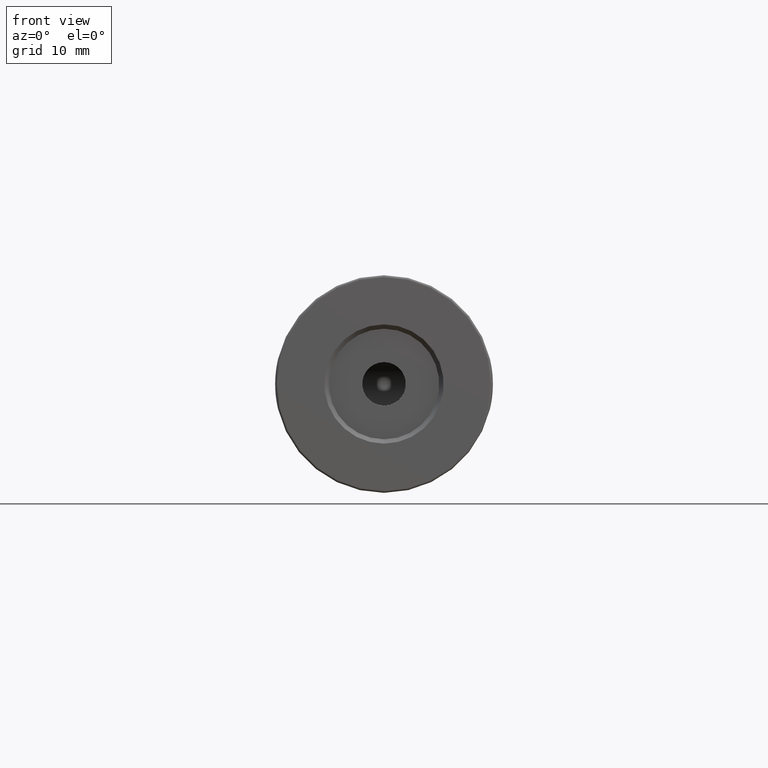
[diagram: clean part render]
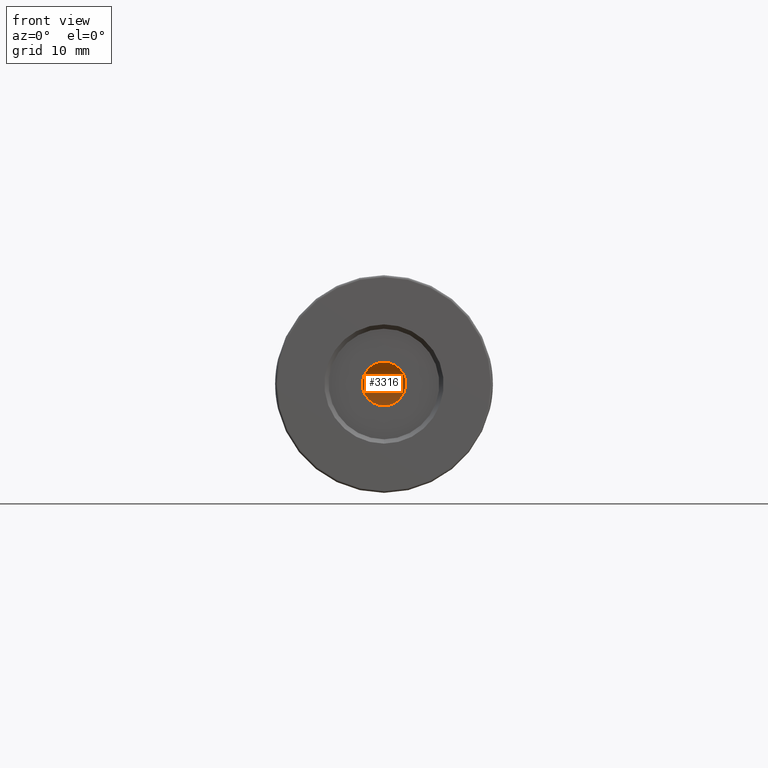
[diagram: same view with one face highlighted and labeled with its STEP entity id]
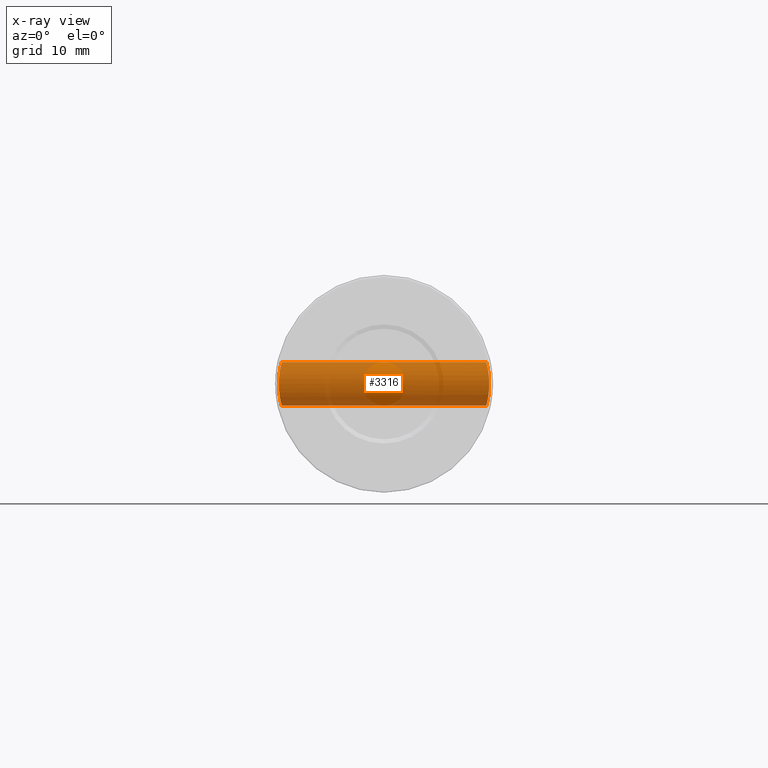
[diagram: x-ray of the same camera — body ghosted, the highlighted face saturated]
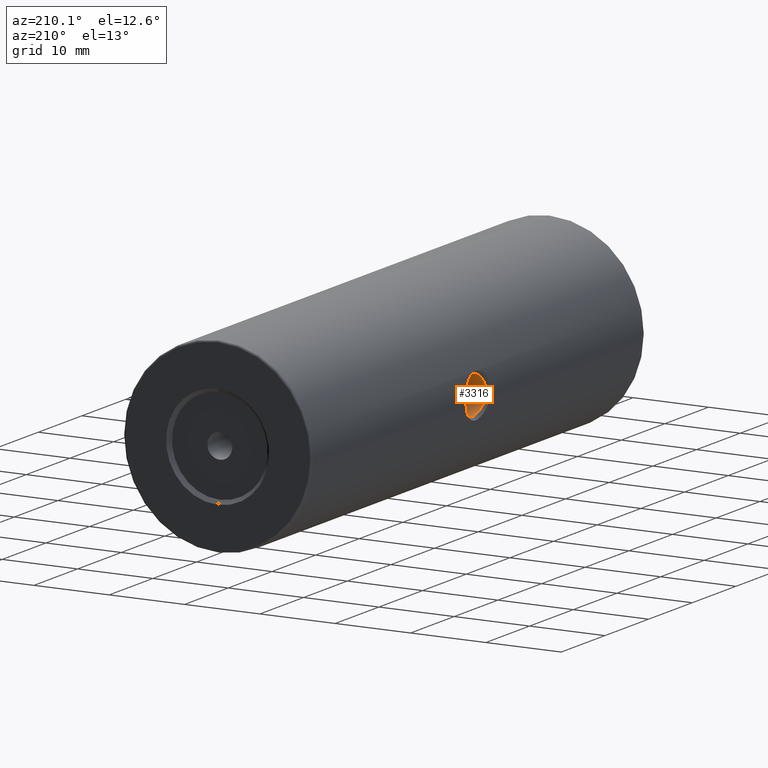
[diagram: same view with one face highlighted and labeled with its STEP entity id]
A machine part, front view. The second image highlights one B-rep face of the part: STEP entity #3316.
The next image is the same camera in x-ray: the body ghosted, the highlighted face saturated — about 84% of this face is hidden behind the body in this view.
A second angle (auxiliary view) of the same face is appended — the face is thin or edge-on in the first view.
In plain terms, the highlighted cylindrical surface (edge-blend (fillet) strip) has radius 2.5 mm, axis along (1, -0, -0).
Its self-contained STEP definition (entity closure, byte-faithful):
#16 = ORIENTED_EDGE ( 'NONE', *, *, #1882, .T. ) ;
#35 = CARTESIAN_POINT ( 'NONE',  ( -10.75667521398800730, 1.235421006823688383, 52.49604762626783838 ) ) ;
#46 = CARTESIAN_POINT ( 'NONE',  ( -10.75775311712867754, 1.398252184769388506, 47.50000000000000000 ) ) ;
#67 = VECTOR ( 'NONE', #483, 1000.000000000000000 ) ;
#71 = CARTESIAN_POINT ( 'NONE',  ( -10.59768553197811869, -0.3321902542045349072, 51.80448705928743891 ) ) ;
#77 = CARTESIAN_POINT ( 'NONE',  ( -34.33611078084103951, 0.1503272233542552461, 47.83335261609457234 ) ) ;
#86 = CARTESIAN_POINT ( 'NONE',  ( -10.63294623926913474, -0.1287006706456949867, 51.97970505892235593 ) ) ;
#92 = CARTESIAN_POINT ( 'NONE',  ( -34.28890165778433641, 0.5753963108306161534, 47.63868203712559790 ) ) ;
#94 = CARTESIAN_POINT ( 'NONE',  ( -34.25265054498069617, 1.398252184769378959, 47.49999999999539568 ) ) ;
#95 = CARTESIAN_POINT ( 'NONE',  ( -34.53800786392629618, -0.9182488754525560681, 50.94032211410492295 ) ) ;
#101 = CARTESIAN_POINT ( 'NONE',  ( -10.49436252009430959, -0.8263483254940376943, 51.14147247842084454 ) ) ;
#107 = B_SPLINE_CURVE_WITH_KNOTS ( 'NONE', 3,
 ( #3328, #3033, #131, #922, #2247, #1684, #3068, #2281, #112, #2001, #612, #401, #871, #95, #3345, #940, #1152, #3015, #2753, #1484, #2230, #886, #368, #3085, #682, #1754, #2821, #2560, #164, #2214, #3278, #2884, #956, #2084, #462, #2295, #1267, #3128, #2361, #2590, #742, #1235, #1797, #710, #2574, #1769, #1547, #1019, #3359, #2866, #3098, #696, #1530, #224, #2063, #2837, #2606, #2623, #1817, #3146, #180, #2049, #2034, #445, #480, #3425, #2310, #194, #1286, #430, #3112, #1515, #1004, #2102, #3372, #1498 ),
 .UNSPECIFIED., .F., .F.,
 ( 4, 2, 2, 2, 2, 1, 2, 2, 1, 2, 2, 2, 1, 2, 2, 2, 1, 1, 2, 2, 2, 2, 2, 2, 2, 2, 2, 1, 2, 2, 2, 1, 2, 2, 2, 2, 2, 1, 2, 2, 2, 4 ),
 ( 0.0000000000000000000, 0.01563223350079642054, 0.03126446700159284109, 0.03908058375199108953, 0.04689670050238933796, 0.05471281725278757946, 0.05862087562798731777, 0.06252893400318706996, 0.07034505075358657433, 0.07425310912878631264, 0.07816116750398605095, 0.08597728425438555533, 0.08988534262958522425, 0.09183937181718498932, 0.09379340100478475439, 0.1016095177551808171, 0.1055175761303784043, 0.1074716053179772118, 0.1084486199117765948, 0.1094256345055759777, 0.1172417512559694591, 0.1211498096311661304, 0.1231038388187643967, 0.1250578680063626491, 0.1328739847567578791, 0.1348280139443564229, 0.1358050285381557087, 0.1367820431319549668, 0.1387360723195534828, 0.1406901015071520267, 0.1485062182575438983, 0.1524142766327393761, 0.1543683058203366987, 0.1563223350079340213, 0.1641384517583213409, 0.1680465101335150702, 0.1719545685087088271, 0.1797706852590958415, 0.1836787436342895985, 0.1875868020094833832, 0.2188512690110356040, 0.2501157360125878526 ),
 .UNSPECIFIED. ) ;
#112 = CARTESIAN_POINT ( 'NONE',  ( -34.55953902162514879, -1.005153659614235639, 50.68936837205296797 ) ) ;
#120 = CARTESIAN_POINT ( 'NONE',  ( -10.45853397091776671, -0.9753457991710134944, 50.80247828405234145 ) ) ;
#128 = CARTESIAN_POINT ( 'NONE',  ( -34.25829749248940459, 1.071978150816064623, 47.52103727241345155 ) ) ;
#131 = CARTESIAN_POINT ( 'NONE',  ( -34.58332565315851781, -1.097829955506915534, 50.16206928806295195 ) ) ;
#138 = CARTESIAN_POINT ( 'NONE',  ( -10.54466226497597958, -0.6005430654720785855, 48.49825746431432094 ) ) ;
#146 = CARTESIAN_POINT ( 'NONE',  ( -34.36546234113603759, -0.05330031764544096440, 47.96415985773879243 ) ) ;
#155 = CARTESIAN_POINT ( 'NONE',  ( -10.43156405840181478, -1.080594982313358265, 49.67285477186080556 ) ) ;
#164 = CARTESIAN_POINT ( 'NONE',  ( -34.46581749594777477, -0.6009040175966636754, 51.50126430585235227 ) ) ;
#170 = CARTESIAN_POINT ( 'NONE',  ( -10.47039545447469244, -0.9264528070140645166, 49.08012378239175888 ) ) ;
#180 = CARTESIAN_POINT ( 'NONE',  ( -34.35081851357114857, 0.04444782514057967621, 52.10216400113468893 ) ) ;
#185 = CARTESIAN_POINT ( 'NONE',  ( -10.63454691683143238, -0.1190031697157455381, 48.01264145024488528 ) ) ;
#194 = CARTESIAN_POINT ( 'NONE',  ( -34.31595423362264086, 0.3112339593188586107, 52.25194986128754238 ) ) ;
#199 = CARTESIAN_POINT ( 'NONE',  ( -10.72619458734589060, 0.6309908819573776251, 47.62028681999434809 ) ) ;
#214 = CARTESIAN_POINT ( 'NONE',  ( -10.74267190343699596, 0.8671768546495363106, 47.55670384601889111 ) ) ;
#219 = CARTESIAN_POINT ( 'NONE',  ( -34.58016539617008789, -1.085858857453090298, 49.67297012239200171 ) ) ;
#224 = CARTESIAN_POINT ( 'NONE',  ( -34.38153388471020122, -0.1538147826457436362, 51.96040254878963793 ) ) ;
#231 = CARTESIAN_POINT ( 'NONE',  ( -10.67858783946020829, 0.1833180172065385083, 47.81497774244996180 ) ) ;
#236 = CARTESIAN_POINT ( 'NONE',  ( -34.43271107056651914, -0.4380337513509017788, 48.30302201632877512 ) ) ;
#244 = CARTESIAN_POINT ( 'NONE',  ( -35.00520183104453764, 1.398252184769388506, 47.50000000000000000 ) ) ;
#247 = CARTESIAN_POINT ( 'NONE',  ( -10.73524935634133470, 0.7501397675427314837, 47.58512630802447063 ) ) ;
#254 = CARTESIAN_POINT ( 'NONE',  ( -34.52237776068144370, -0.8532812733182263409, 48.91209882788901808 ) ) ;
#271 = CARTESIAN_POINT ( 'NONE',  ( -10.56685546660041197, -0.4927281287819081923, 51.63538786506156697 ) ) ;
#288 = CARTESIAN_POINT ( 'NONE',  ( -10.67397712752151939, 0.1479697807018201250, 52.16528279556865755 ) ) ;
#306 = CARTESIAN_POINT ( 'NONE',  ( -10.66309147314436068, 0.06921372924087453027, 52.11764764604126299 ) ) ;
#323 = VERTEX_POINT ( 'NONE', #94 ) ;
#325 = CARTESIAN_POINT ( 'NONE',  ( -10.61534918408378658, -0.2334643236673985822, 51.89451868795770650 ) ) ;
#331 = CARTESIAN_POINT ( 'NONE',  ( -34.36065912380771437, -0.02189760901745156640, 47.94221740973863888 ) ) ;
#347 = CARTESIAN_POINT ( 'NONE',  ( -34.27515761366211677, 0.7500930229032413132, 47.58513699397326491 ) ) ;
#357 = CARTESIAN_POINT ( 'NONE',  ( -10.57485337616752474, -0.4524102370142230600, 48.31908865571287492 ) ) ;
#368 = CARTESIAN_POINT ( 'NONE',  ( -34.49189742568898254, -0.7208368889190491791, 51.32674070400197763 ) ) ;
#374 = CARTESIAN_POINT ( 'NONE',  ( -10.49456390203905798, -0.8254235332581697504, 48.85732724731891352 ) ) ;
#383 = CARTESIAN_POINT ( 'NONE',  ( -35.00520183104453764, 1.398252184769388728, 52.50000000000000711 ) ) ;
#390 = CARTESIAN_POINT ( 'NONE',  ( -10.56183111278579112, -0.5176069660207067713, 51.60611082408080819 ) ) ;
#398 = CARTESIAN_POINT ( 'NONE',  ( -34.35511391788237745, 0.01548280112290609245, 47.91720626423345664 ) ) ;
#401 = CARTESIAN_POINT ( 'NONE',  ( -34.54368112407052394, -0.9414460339125865218, 50.88104559081531875 ) ) ;
#407 = CARTESIAN_POINT ( 'NONE',  ( -10.52981318182304982, -0.6696149487913550802, 51.40499581730534118 ) ) ;
#414 = CARTESIAN_POINT ( 'NONE',  ( -34.56966959213394119, -1.045008463534081500, 49.46876354828056321 ) ) ;
#422 = CARTESIAN_POINT ( 'NONE',  ( -10.50134449062665176, -0.7962799575883163783, 51.19769795377343513 ) ) ;
#430 = CARTESIAN_POINT ( 'NONE',  ( -34.30585923076485955, 0.4026942708935128401, 52.29330818213769305 ) ) ;
#445 = CARTESIAN_POINT ( 'NONE',  ( -34.33622545325887643, 0.1498362925617893748, 52.16606716925286236 ) ) ;
#451 = CARTESIAN_POINT ( 'NONE',  ( -10.62899526951344953, -0.1530495287548256089, 48.03899991138553816 ) ) ;
#462 = CARTESIAN_POINT ( 'NONE',  ( -34.44811386676256859, -0.5154113349209866746, 51.60895465352095357 ) ) ;
#468 = CARTESIAN_POINT ( 'NONE',  ( -10.67407581830363661, 0.1490699397468195908, 47.83437514416252867 ) ) ;
#474 = CARTESIAN_POINT ( 'NONE',  ( -34.48044836706667837, -0.6689643208926463469, 48.59404682428305478 ) ) ;
#480 = CARTESIAN_POINT ( 'NONE',  ( -34.33170421932185690, 0.1841765980687189996, 52.18549987220520592 ) ) ;
#483 = DIRECTION ( 'NONE',  ( 1.000000000000000000, -0.0000000000000000000, -0.0000000000000000000 ) ) ;
#486 = CARTESIAN_POINT ( 'NONE',  ( -10.75775311712867932, 1.236031257711929232, 47.50000000000000711 ) ) ;
#492 = CARTESIAN_POINT ( 'NONE',  ( -34.44989863875254343, -0.5241191200916088810, 48.40171871345798849 ) ) ;
#532 = CARTESIAN_POINT ( 'NONE',  ( -34.54002772576768621, -0.9265728093899719964, 49.07969790767009499 ) ) ;
#568 = CARTESIAN_POINT ( 'NONE',  ( -10.75344100360282873, 1.112614096201507197, 52.48396916620082209 ) ) ;
#602 = CARTESIAN_POINT ( 'NONE',  ( -10.63697505380315356, -0.1036455915513017079, 51.99867907383298871 ) ) ;
#608 = CARTESIAN_POINT ( 'NONE',  ( -34.38468148765102228, -0.1723687771910663857, 48.05495386559690019 ) ) ;
#612 = CARTESIAN_POINT ( 'NONE',  ( -34.54897798571440148, -0.9629645925019317820, 50.82316125446094190 ) ) ;
#619 = CARTESIAN_POINT ( 'NONE',  ( -10.72622720231814242, 0.6314631382452489117, 52.37983731699282686 ) ) ;
#626 = CARTESIAN_POINT ( 'NONE',  ( -34.30563352354653262, 0.4043161049987979982, 47.70574000956042937 ) ) ;
#636 = CARTESIAN_POINT ( 'NONE',  ( -10.54703919514980370, -0.5893708080303482477, 51.51690487171907762 ) ) ;
#654 = CARTESIAN_POINT ( 'NONE',  ( -10.43025254437212723, -1.085644778690259438, 49.71374546766625713 ) ) ;
#662 = CARTESIAN_POINT ( 'NONE',  ( -34.34333947315310098, 0.09759829469699134175, 47.86488434572822825 ) ) ;
#671 = CARTESIAN_POINT ( 'NONE',  ( -10.48775368432496791, -0.8544294257559617023, 51.08551524635965535 ) ) ;
#680 = CARTESIAN_POINT ( 'NONE',  ( -34.50003614694451670, -0.7569234432846284610, 48.73286471892436822 ) ) ;
#682 = CARTESIAN_POINT ( 'NONE',  ( -34.48550909626910510, -0.6920244124226463400, 51.37144371162716538 ) ) ;
#688 = CARTESIAN_POINT ( 'NONE',  ( -10.52509590031765896, -0.6911116932019383263, 48.62716596998337337 ) ) ;
#696 = CARTESIAN_POINT ( 'NONE',  ( -34.39003097984237911, -0.2040613253599488086, 51.91903397185393487 ) ) ;
#701 = CARTESIAN_POINT ( 'NONE',  ( -10.50337425848758599, -0.7875330552918761162, 48.78598592210264684 ) ) ;
#710 = CARTESIAN_POINT ( 'NONE',  ( -34.40604090029047057, -0.2955402768680885917, 51.83903909638959817 ) ) ;
#732 = B_SPLINE_CURVE_WITH_KNOTS ( 'NONE', 3,
 ( #1664, #3306, #2524, #1445, #128, #1133, #1148, #2261, #1980, #347, #3325, #1947, #92, #1412, #2803, #2227, #626, #2470, #2732, #1697, #2542, #2504, #77, #662, #1998, #2210, #1734, #398, #331, #146, #2195, #2995, #3011, #608, #2749, #3291, #883, #2766, #2356, #3399, #1014, #2016, #2134, #2913, #236, #3158, #1031, #3455, #1217, #492, #2372, #1601, #3438, #1542, #3083, #1830, #1298, #474, #2097, #1200, #2618, #680, #3419, #3343, #1482, #1580, #254, #2819, #1752, #938, #532, #2340, #1810, #2895, #2279, #737, #2879, #414, #219, #1562, #2673 ),
 .UNSPECIFIED., .F., .F.,
 ( 4, 2, 2, 2, 2, 2, 1, 2, 2, 1, 2, 2, 2, 1, 2, 2, 2, 1, 1, 1, 2, 2, 2, 2, 2, 2, 2, 1, 2, 2, 2, 1, 2, 2, 2, 2, 2, 1, 2, 2, 2, 2, 2, 2, 4 ),
 ( 0.7500228881835949712, 0.7656464576721251358, 0.7734582424163900516, 0.7812700271606550784, 0.7890818119049199941, 0.7968935966491850209, 0.8047053813934499367, 0.8086112737655821725, 0.8125171661377144083, 0.8203289508819793241, 0.8242348432541117820, 0.8281407356262442399, 0.8359525203705090446, 0.8398584127426411694, 0.8418113589287072873, 0.8437643051147732942, 0.8515760898590373218, 0.8554819822311694466, 0.8574349284172358976, 0.8584114015102690676, 0.8588996380567855971, 0.8593878746033020155, 0.8671996593475631565, 0.8711055517196942821, 0.8750114440918252967, 0.8828232288360867708, 0.8867291212082168972, 0.8886820673942824600, 0.8896585404873151859, 0.8906350135803480228, 0.8984467983246064993, 0.9023526906967364036, 0.9043056368828014113, 0.9062585830688664190, 0.9140703678131247845, 0.9179762601852545778, 0.9218821525573843711, 0.9296939373016450681, 0.9335998296737753055, 0.9375057220459055429, 0.9453175067901672390, 0.9531292915344288241, 0.9609410762786904092, 0.9687528610229521053, 1.000000000000000000 ),
 .UNSPECIFIED. ) ;
#737 = CARTESIAN_POINT ( 'NONE',  ( -34.56241719056820472, -1.016540575825765957, 49.35158547355308656 ) ) ;
#742 = CARTESIAN_POINT ( 'NONE',  ( -34.42314861016581062, -0.3880299836940076519, 51.74909948006111904 ) ) ;
#749 = CARTESIAN_POINT ( 'NONE',  ( -10.58721188069590013, -0.3882578060680674237, 48.25113323422816336 ) ) ;
#765 = CARTESIAN_POINT ( 'NONE',  ( -10.73240326151517543, 0.7104556606544493169, 47.59611550458409823 ) ) ;
#801 = CARTESIAN_POINT ( 'NONE',  ( -34.58436371778454799, -1.101747815230615046, 50.00000000000000000 ) ) ;
#809 = CARTESIAN_POINT ( 'NONE',  ( -10.68486198365353523, 0.2326005164728883468, 52.21170044161963375 ) ) ;
#826 = CARTESIAN_POINT ( 'NONE',  ( -10.65663854590160575, 0.02464572239993973249, 52.08885589112610148 ) ) ;
#844 = CARTESIAN_POINT ( 'NONE',  ( -10.65924026932433755, 0.04251003612912508667, 52.10049443554501636 ) ) ;
#861 = CARTESIAN_POINT ( 'NONE',  ( -10.70449112277428227, 0.4016970245411170537, 52.29312540136073295 ) ) ;
#871 = CARTESIAN_POINT ( 'NONE',  ( -34.54002586173841394, -0.9265255133307832569, 50.91969437424333478 ) ) ;
#877 = CARTESIAN_POINT ( 'NONE',  ( -10.74885913942064342, 0.9897023148770923706, 52.46673922109147270 ) ) ;
#883 = CARTESIAN_POINT ( 'NONE',  ( -34.38704001704110169, -0.1864058910965706306, 48.06638648103955092 ) ) ;
#886 = CARTESIAN_POINT ( 'NONE',  ( -34.49555993424321798, -0.7371358814664346060, 51.30020623645595634 ) ) ;
#894 = CARTESIAN_POINT ( 'NONE',  ( -10.44688409141886432, -1.021078929278354419, 50.65151652737000632 ) ) ;
#911 = CARTESIAN_POINT ( 'NONE',  ( -10.55563654013722541, -0.5478977700872589285, 48.43075464459153068 ) ) ;
#912 = CYLINDRICAL_SURFACE ( 'NONE', #2745, 2.500000000000002220 ) ;
#922 = CARTESIAN_POINT ( 'NONE',  ( -34.57917339465430473, -1.081894588688653736, 50.32490689011657281 ) ) ;
#930 = CARTESIAN_POINT ( 'NONE',  ( -10.51011081742807640, -0.7580530290960880713, 51.26521392757351947 ) ) ;
#933 = EDGE_CURVE ( 'NONE', #323, #2616, #3205, .T. ) ;
#935 = VERTEX_POINT ( 'NONE', #801 ) ;
#938 = CARTESIAN_POINT ( 'NONE',  ( -34.53415704703239442, -0.9023810259696539715, 49.02146608219324264 ) ) ;
#940 = CARTESIAN_POINT ( 'NONE',  ( -34.52671466100697018, -0.8715178150477008723, 51.04931399673699843 ) ) ;
#946 = CARTESIAN_POINT ( 'NONE',  ( -10.47238800386750945, -0.9182809379822212126, 49.05975502746936456 ) ) ;
#956 = CARTESIAN_POINT ( 'NONE',  ( -34.45330299445129896, -0.5407750536104598549, 51.57803819709852178 ) ) ;
#961 = CARTESIAN_POINT ( 'NONE',  ( -10.52659986134877812, -0.6842789163474509717, 48.61683424880514082 ) ) ;
#976 = CARTESIAN_POINT ( 'NONE',  ( -10.66457406164129651, 0.07945628636467474970, 47.87575189702688050 ) ) ;
#990 = CARTESIAN_POINT ( 'NONE',  ( -10.61375476853602606, -0.2424175753993940419, 48.11367224340907001 ) ) ;
#1004 = CARTESIAN_POINT ( 'NONE',  ( -34.27403437959152654, 0.7470135017632717478, 52.41939231723521431 ) ) ;
#1009 = CARTESIAN_POINT ( 'NONE',  ( -10.65192854982789683, -0.007112948201960019035, 47.93238411275946476 ) ) ;
#1014 = CARTESIAN_POINT ( 'NONE',  ( -34.40583974799373124, -0.2943204191261629687, 48.15994960568419714 ) ) ;
#1019 = CARTESIAN_POINT ( 'NONE',  ( -34.39821049578661416, -0.2513442735234109326, 51.87852623588366896 ) ) ;
#1026 = CARTESIAN_POINT ( 'NONE',  ( -10.68052348044138711, 0.1982792118213697330, 47.80671014586517487 ) ) ;
#1031 = CARTESIAN_POINT ( 'NONE',  ( -34.44330006849612857, -0.4914919949713063563, 48.36318211073473350 ) ) ;
#1069 = CARTESIAN_POINT ( 'NONE',  ( -10.62583528340232419, -0.1716875950641108539, 51.94559000062299248 ) ) ;
#1090 = CARTESIAN_POINT ( 'NONE',  ( -10.65514354456009372, 0.01449203190352067218, 52.08213575340119661 ) ) ;
#1108 = CARTESIAN_POINT ( 'NONE',  ( -10.66678853302218322, 0.09561727200063196985, 52.13390632472764707 ) ) ;
#1127 = CARTESIAN_POINT ( 'NONE',  ( -10.69192657274649605, 0.2906602530027208586, 52.24135659737299164 ) ) ;
#1133 = CARTESIAN_POINT ( 'NONE',  ( -34.26152439529791138, 0.9901480680584631155, 47.53318789124117671 ) ) ;
#1142 = CARTESIAN_POINT ( 'NONE',  ( -10.71009666006401950, 0.4561568447543077887, 52.31578128150257356 ) ) ;
#1148 = CARTESIAN_POINT ( 'NONE',  ( -34.26348267496896938, 0.9478053007262210450, 47.54058718526124494 ) ) ;
#1152 = CARTESIAN_POINT ( 'NONE',  ( -34.52032622242433746, -0.8445100356032293476, 51.10473890577434020 ) ) ;
#1158 = CARTESIAN_POINT ( 'NONE',  ( -10.51723568322991831, -0.7265641944379241934, 51.31788815387729130 ) ) ;
#1175 = CARTESIAN_POINT ( 'NONE',  ( -10.43661014202600334, -1.061059718646982120, 49.54899595833271064 ) ) ;
#1193 = CARTESIAN_POINT ( 'NONE',  ( -10.56225021271690956, -0.5156065727790737352, 48.39127750157884833 ) ) ;
#1200 = CARTESIAN_POINT ( 'NONE',  ( -34.48795404595411895, -0.7031998793499536493, 48.64510045658028758 ) ) ;
#1210 = CARTESIAN_POINT ( 'NONE',  ( -10.44294982557474327, -1.036351153594447183, 49.43045362237477747 ) ) ;
#1217 = CARTESIAN_POINT ( 'NONE',  ( -34.44837371987758701, -0.5166280661029161170, 48.39272163355637701 ) ) ;
#1225 = CARTESIAN_POINT ( 'NONE',  ( -10.47779617320455081, -0.8959676764292116014, 50.99345784358121847 ) ) ;
#1235 = CARTESIAN_POINT ( 'NONE',  ( -34.42163468957090799, -0.3800297843784509744, 51.75724919856500605 ) ) ;
#1240 = CARTESIAN_POINT ( 'NONE',  ( -10.61064650977544943, -0.2601381410403050820, 48.12922970413440993 ) ) ;
#1241 = FACE_OUTER_BOUND ( 'NONE', #2319, .T. ) ;
#1258 = CARTESIAN_POINT ( 'NONE',  ( -10.62159523112631199, -0.1968808583487399178, 48.07498591644807817 ) ) ;
#1267 = CARTESIAN_POINT ( 'NONE',  ( -34.43550956284021680, -0.4522026041796066709, 51.68113994092394137 ) ) ;
#1273 = CARTESIAN_POINT ( 'NONE',  ( -10.75344419893105830, 1.071524213025599748, 47.51584169795629009 ) ) ;
#1286 = CARTESIAN_POINT ( 'NONE',  ( -34.30982150685456133, 0.3662233020352880231, 52.27712853465570930 ) ) ;
#1292 = CARTESIAN_POINT ( 'NONE',  ( -10.64232181272081945, -0.06986180900785315950, 47.97637558937557145 ) ) ;
#1298 = CARTESIAN_POINT ( 'NONE',  ( -34.47813198005130886, -0.6583300113459676917, 48.57853663986320925 ) ) ;
#1309 = CARTESIAN_POINT ( 'NONE',  ( -10.61791199076805547, -0.2184314463097101200, 48.09305608991351733 ) ) ;
#1334 = CARTESIAN_POINT ( 'NONE',  ( -10.56932247538145297, -0.4803972759767117795, 51.64957173091195841 ) ) ;
#1387 = CARTESIAN_POINT ( 'NONE',  ( -10.60718500969503175, -0.2796514540814480920, 51.85339265523057151 ) ) ;
#1412 = CARTESIAN_POINT ( 'NONE',  ( -34.29428882788727151, 0.5177238711668654680, 47.66010762345736396 ) ) ;
#1421 = CARTESIAN_POINT ( 'NONE',  ( -10.53216740897183357, -0.6588951868629271402, 48.57891688851641732 ) ) ;
#1436 = CARTESIAN_POINT ( 'NONE',  ( -10.51501407883767492, -0.7363793037194833468, 48.69855127273331163 ) ) ;
#1437 = EDGE_CURVE ( 'NONE', #323, #935, #732, .T. ) ;
#1445 = CARTESIAN_POINT ( 'NONE',  ( -34.25695295455720668, 1.112906428229122779, 47.51599801852434268 ) ) ;
#1449 = EDGE_CURVE ( 'NONE', #3368, #2616, #1527, .T. ) ;
#1458 = CARTESIAN_POINT ( 'NONE',  ( -10.53211967788949543, -0.6590292880688546351, 51.42045086864089143 ) ) ;
#1468 = LINE ( 'NONE', #383, #1653 ) ;
#1474 = CARTESIAN_POINT ( 'NONE',  ( -10.52225190994312065, -0.7040929117081498045, 51.35352181783002834 ) ) ;
#1482 = CARTESIAN_POINT ( 'NONE',  ( -34.50873068778917485, -0.7948591728950414881, 48.79970146550761001 ) ) ;
#1484 = CARTESIAN_POINT ( 'NONE',  ( -34.50716656986350728, -0.7881284129451863185, 51.21293915893434701 ) ) ;
#1490 = CARTESIAN_POINT ( 'NONE',  ( -10.52885508855793439, -0.6739989469079826767, 51.39853227019023052 ) ) ;
#1498 = CARTESIAN_POINT ( 'NONE',  ( -34.25265052839080937, 1.398252184769062545, 52.50000002275201183 ) ) ;
#1509 = ORIENTED_EDGE ( 'NONE', *, *, #1437, .T. ) ;
#1515 = CARTESIAN_POINT ( 'NONE',  ( -34.28602672658882256, 0.5950355728030163327, 52.37347955788893472 ) ) ;
#1521 = CARTESIAN_POINT ( 'NONE',  ( -10.58870654708413639, -0.3803608511668468140, 48.24308501967145446 ) ) ;
#1527 = B_SPLINE_CURVE_WITH_KNOTS ( 'NONE', 3,
 ( #2971, #2726, #35, #568, #1637, #877, #2710, #2187, #1619, #3215, #3250, #619, #2480, #1924, #2951, #1142, #861, #2690, #1127, #2988, #809, #1890, #288, #1108, #306, #844, #826, #1090, #3022, #2168, #602, #86, #1673, #1069, #2221, #1657, #3231, #325, #1387, #1941, #71, #3284, #3266, #1691, #1334, #271, #3005, #390, #2793, #1990, #2008, #2254, #636, #3299, #3090, #1458, #407, #1490, #1474, #1158, #930, #2534, #3074, #422, #101, #671, #2237, #1225, #2551, #120, #894, #3057, #3351, #2566, #1708, #654, #155, #1973, #1175, #1727, #1210, #2271, #3104, #2827, #1745, #3039, #170, #946, #2775, #2287, #2812, #374, #2026, #701, #2302, #1436, #2515, #3364, #688, #961, #1421, #3318, #138, #2497, #1761, #911, #2040, #2759, #1193, #3335, #357, #2858, #1774, #2108, #749, #1521, #3153, #3412, #1803, #1240, #2631, #2842, #990, #2333, #1309, #2384, #1258, #451, #185, #1292, #1554, #2872, #1009, #2612, #2596, #976, #3379, #468, #231, #1026, #1823, #2090, #2127, #1574, #3393, #2580, #2890, #1536, #199, #765, #247, #2069, #214, #1273, #486, #2367 ),
 .UNSPECIFIED., .F., .F.,
 ( 4, 2, 2, 2, 2, 2, 1, 2, 2, 1, 2, 2, 2, 1, 2, 2, 2, 1, 1, 2, 2, 2, 2, 2, 2, 2, 1, 2, 2, 2, 1, 2, 2, 2, 2, 2, 1, 2, 2, 2, 2, 2, 2, 2, 2, 2, 1, 2, 2, 1, 2, 2, 2, 1, 2, 2, 2, 1, 1, 2, 2, 2, 2, 2, 2, 2, 2, 2, 1, 2, 2, 2, 1, 2, 2, 2, 2, 2, 1, 2, 2, 2, 2, 2, 2, 4 ),
 ( 0.5001617398552816729, 0.5157816854847975252, 0.5235916582995554514, 0.5314016311143133775, 0.5392116039290713037, 0.5470215767438291188, 0.5548315495585870449, 0.5587365359659660635, 0.5626415223733449711, 0.5704514951881034523, 0.5743564815954823599, 0.5782614680028612675, 0.5860714408176191936, 0.5899764272249977681, 0.5919289204286870554, 0.5938814136323764536, 0.6016913864471343798, 0.6055963728545132874, 0.6075488660582027967, 0.6085251126600474958, 0.6095013592618923060, 0.6173113320766486778, 0.6212163184840273633, 0.6251213048914059378, 0.6329312777061625317, 0.6368362641135407731, 0.6387887573172293942, 0.6397650039190742044, 0.6407412505209191256, 0.6485512233356810485, 0.6524562097430620655, 0.6544087029467525740, 0.6563611961504430825, 0.6641711689652061157, 0.6680761553725870217, 0.6719811417799679276, 0.6797911145947298506, 0.6836961010021107565, 0.6876010874094916625, 0.7188409786685332481, 0.7500808699275748337, 0.7657008155570955710, 0.7735107883718559396, 0.7813207611866164193, 0.7891307340013766769, 0.7969407068161371566, 0.8047506796308974142, 0.8086556660382776540, 0.8125606524456578938, 0.8203706252604194837, 0.8242756116677997236, 0.8281805980751799634, 0.8359905708899404431, 0.8398955572973212380, 0.8418480505010121906, 0.8438005437047031432, 0.8516105165194682858, 0.8555155029268508571, 0.8574679961305426978, 0.8584442427323886182, 0.8594204893342344276, 0.8672304621489971277, 0.8711354485563784777, 0.8730879417600692083, 0.8750404349637599388, 0.8828504077785239712, 0.8848029009822154789, 0.8857791475840612883, 0.8867553941859069866, 0.8887078873895983833, 0.8906603805932900020, 0.8984703534080551446, 0.9023753398154379379, 0.9043278330191292236, 0.9062803262228205092, 0.9140902990375849857, 0.9179952854449672239, 0.9219002718523494622, 0.9297102446671140497, 0.9336152310744965099, 0.9375202174818790812, 0.9453301902966441128, 0.9531401631114092554, 0.9609501359261742870, 0.9687601087409394296, 1.000000000000000000 ),
 .UNSPECIFIED. ) ;
#1530 = CARTESIAN_POINT ( 'NONE',  ( -34.38899210786620841, -0.1979629008822638703, 51.92411746701655773 ) ) ;
#1536 = CARTESIAN_POINT ( 'NONE',  ( -10.72308232676026307, 0.5941581164040667939, 47.63248772434126721 ) ) ;
#1542 = CARTESIAN_POINT ( 'NONE',  ( -34.46314919979064939, -0.5883474058435920195, 48.48175091567107842 ) ) ;
#1547 = CARTESIAN_POINT ( 'NONE',  ( -34.39865427625549898, -0.2538691973400138413, 51.87630079074619260 ) ) ;
#1554 = CARTESIAN_POINT ( 'NONE',  ( -10.64607111689360330, -0.04577195224949177216, 47.95906072880786297 ) ) ;
#1562 = CARTESIAN_POINT ( 'NONE',  ( -34.58436371778456220, -1.101747815230613714, 49.83753810388080296 ) ) ;
#1574 = CARTESIAN_POINT ( 'NONE',  ( -10.70455658936282362, 0.4028058139491539902, 47.70664235401721243 ) ) ;
#1580 = CARTESIAN_POINT ( 'NONE',  ( -34.51574154473058087, -0.8250691338028166566, 48.85603395571918384 ) ) ;
#1601 = CARTESIAN_POINT ( 'NONE',  ( -34.45111437475302552, -0.5300818197864789472, 48.40891250348748542 ) ) ;
#1619 = CARTESIAN_POINT ( 'NONE',  ( -10.74040006284343463, 0.8288618079329053145, 52.43464063303964195 ) ) ;
#1637 = CARTESIAN_POINT ( 'NONE',  ( -10.75209340271503500, 1.071636353598622859, 52.47891861098515420 ) ) ;
#1653 = VECTOR ( 'NONE', #2527, 1000.000000000000000 ) ;
#1657 = CARTESIAN_POINT ( 'NONE',  ( -10.62344330914795343, -0.1859351135011738654, 51.93400119754530664 ) ) ;
#1664 = CARTESIAN_POINT ( 'NONE',  ( -34.25265054498069617, 1.398252184769378959, 47.49999999999539568 ) ) ;
#1673 = CARTESIAN_POINT ( 'NONE',  ( -10.62800475087764163, -0.1586852751790835125, 51.95605736541126163 ) ) ;
#1684 = CARTESIAN_POINT ( 'NONE',  ( -34.56987545375629622, -1.045809881134752262, 50.52745018300709745 ) ) ;
#1691 = CARTESIAN_POINT ( 'NONE',  ( -10.57732511994480440, -0.4399142557591672609, 51.69492976375318705 ) ) ;
#1697 = CARTESIAN_POINT ( 'NONE',  ( -34.32262663298998007, 0.2561880021919635264, 47.77601120059365059 ) ) ;
#1708 = CARTESIAN_POINT ( 'NONE',  ( -10.42710243056529151, -1.097735351428668960, 49.83632547966586657 ) ) ;
#1727 = CARTESIAN_POINT ( 'NONE',  ( -10.44066708810786892, -1.045268519329391133, 49.47006957765542978 ) ) ;
#1734 = CARTESIAN_POINT ( 'NONE',  ( -34.35355224952771636, 0.02609830711255558752, 47.91018924373251053 ) ) ;
#1745 = CARTESIAN_POINT ( 'NONE',  ( -10.46147760231215784, -0.9627523268275313129, 49.17624564877182536 ) ) ;
#1749 = ORIENTED_EDGE ( 'NONE', *, *, #1449, .T. ) ;
#1752 = CARTESIAN_POINT ( 'NONE',  ( -34.53237663779294309, -0.8950104628570485499, 49.00433359298713043 ) ) ;
#1754 = CARTESIAN_POINT ( 'NONE',  ( -34.48401816584318169, -0.6852538559194117918, 51.38169719037595939 ) ) ;
#1761 = CARTESIAN_POINT ( 'NONE',  ( -10.55350416965520388, -0.5582445815109516873, 48.44361620070442598 ) ) ;
#1769 = CARTESIAN_POINT ( 'NONE',  ( -34.39988808709925650, -0.2608806381886811798, 51.87011153413222786 ) ) ;
#1774 = CARTESIAN_POINT ( 'NONE',  ( -10.58234760790220541, -0.4137576542944786939, 48.27757271579589826 ) ) ;
#1797 = CARTESIAN_POINT ( 'NONE',  ( -34.41198757850305867, -0.3286182139590672624, 51.80867430690366859 ) ) ;
#1803 = CARTESIAN_POINT ( 'NONE',  ( -10.60970156007761034, -0.2654886929311985333, 48.13398014641956024 ) ) ;
#1810 = CARTESIAN_POINT ( 'NONE',  ( -34.55052360424223679, -0.9691579968588803773, 49.19560660666284946 ) ) ;
#1812 = EDGE_CURVE ( 'NONE', #2847, #3368, #1468, .T. ) ;
#1817 = CARTESIAN_POINT ( 'NONE',  ( -34.35844637509797650, -0.006921562693627182627, 52.06774620974061918 ) ) ;
#1823 = CARTESIAN_POINT ( 'NONE',  ( -10.68765339095450173, 0.2547109134585729961, 47.77645880608551465 ) ) ;
#1830 = CARTESIAN_POINT ( 'NONE',  ( -34.47459360787124183, -0.6420274702811613610, 48.55504079393526951 ) ) ;
#1882 = EDGE_CURVE ( 'NONE', #935, #2847, #107, .T. ) ;
#1890 = CARTESIAN_POINT ( 'NONE',  ( -10.67849549017935651, 0.1822641008418197650, 52.18467929014708773 ) ) ;
#1924 = CARTESIAN_POINT ( 'NONE',  ( -10.71592032880042389, 0.5156644171080146943, 52.33911789081590626 ) ) ;
#1941 = CARTESIAN_POINT ( 'NONE',  ( -10.60419655756648005, -0.2963636034453996371, 51.83817352610439144 ) ) ;
#1947 = CARTESIAN_POINT ( 'NONE',  ( -34.28408417305335121, 0.6325990094839953892, 47.61980232289805315 ) ) ;
#1973 = CARTESIAN_POINT ( 'NONE',  ( -10.43471003864935120, -1.068430130424116387, 49.59111660102174568 ) ) ;
#1974 = DIRECTION ( 'NONE',  ( 1.000000000000000000, -0.0000000000000000000, -0.0000000000000000000 ) ) ;
#1980 = CARTESIAN_POINT ( 'NONE',  ( -34.26996838981474269, 0.8294527487199871985, 47.56522263060100641 ) ) ;
#1990 = CARTESIAN_POINT ( 'NONE',  ( -10.55933643631681029, -0.5298495552804124431, 51.59136355188955747 ) ) ;
#1991 = DIRECTION ( 'NONE',  ( 0.0000000000000000000, 0.0000000000000000000, -1.000000000000000000 ) ) ;
#1994 = ORIENTED_EDGE ( 'NONE', *, *, #1812, .T. ) ;
#1998 = CARTESIAN_POINT ( 'NONE',  ( -34.34705827748339146, 0.07100138797427488213, 47.88122892111853446 ) ) ;
#2001 = CARTESIAN_POINT ( 'NONE',  ( -34.55371675179537050, -0.9819582165493305759, 50.76562840246329245 ) ) ;
#2008 = CARTESIAN_POINT ( 'NONE',  ( -10.55902407223114992, -0.5313805189122743355, 51.58951214124930118 ) ) ;
#2016 = CARTESIAN_POINT ( 'NONE',  ( -34.41225743630742073, -0.3296779900559737575, 48.19311185072029247 ) ) ;
#2026 = CARTESIAN_POINT ( 'NONE',  ( -10.49703592661981588, -0.8148377673316532510, 48.83698465695414370 ) ) ;
#2034 = CARTESIAN_POINT ( 'NONE',  ( -34.33855469412745265, 0.1324983064703852964, 52.15598756968552863 ) ) ;
#2040 = CARTESIAN_POINT ( 'NONE',  ( -10.55706874358950564, -0.5409305587338300025, 48.42215307473798447 ) ) ;
#2049 = CARTESIAN_POINT ( 'NONE',  ( -34.34574828843347660, 0.08003128967129072291, 52.12460697447709634 ) ) ;
#2063 = CARTESIAN_POINT ( 'NONE',  ( -34.37594117885615219, -0.1195296100760268598, 51.98696219446788547 ) ) ;
#2069 = CARTESIAN_POINT ( 'NONE',  ( -10.74042506147669407, 0.8292857282063980096, 47.56526349991113278 ) ) ;
#2084 = CARTESIAN_POINT ( 'NONE',  ( -34.45235365779287662, -0.5361417108739487958, 51.58370875814266299 ) ) ;
#2090 = CARTESIAN_POINT ( 'NONE',  ( -10.69439968395973750, 0.3107931543510954464, 47.74825504805923515 ) ) ;
#2097 = CARTESIAN_POINT ( 'NONE',  ( -34.48138769154291339, -0.6732635636693998782, 48.60037921175787545 ) ) ;
#2102 = CARTESIAN_POINT ( 'NONE',  ( -34.25692942768895222, 1.072705232126279773, 52.48426854195859903 ) ) ;
#2108 = CARTESIAN_POINT ( 'NONE',  ( -10.58393590299984055, -0.4054708077846079783, 48.26889160422711456 ) ) ;
#2127 = CARTESIAN_POINT ( 'NONE',  ( -10.70057055070316920, 0.3661159423689241965, 47.72291907331112526 ) ) ;
#2134 = CARTESIAN_POINT ( 'NONE',  ( -34.41594418333875893, -0.3496906530694736115, 48.21243221621812580 ) ) ;
#2168 = CARTESIAN_POINT ( 'NONE',  ( -10.64475702027866610, -0.05449199741924855983, 52.03499243828983367 ) ) ;
#2187 = CARTESIAN_POINT ( 'NONE',  ( -10.74274117493966685, 0.8684932594791373583, 52.44355759702530406 ) ) ;
#2195 = CARTESIAN_POINT ( 'NONE',  ( -34.37321774601056035, -0.1023266513581938403, 48.00033112876324992 ) ) ;
#2210 = CARTESIAN_POINT ( 'NONE',  ( -34.35093376907511953, 0.04409749591244581379, 47.89848142058489344 ) ) ;
#2214 = CARTESIAN_POINT ( 'NONE',  ( -34.46180608895016206, -0.5818729988155074695, 51.52640824506125483 ) ) ;
#2221 = CARTESIAN_POINT ( 'NONE',  ( -10.62437748581076136, -0.1803884314933058564, 51.93853686256246505 ) ) ;
#2227 = CARTESIAN_POINT ( 'NONE',  ( -34.30005545319740179, 0.4586515400951979293, 47.68320586000220374 ) ) ;
#2230 = CARTESIAN_POINT ( 'NONE',  ( -34.50268437594262849, -0.7686213966921994212, 51.24753063486599558 ) ) ;
#2237 = CARTESIAN_POINT ( 'NONE',  ( -10.48170455070011897, -0.8797127352051216098, 51.03018400388315712 ) ) ;
#2247 = CARTESIAN_POINT ( 'NONE',  ( -34.57597065877312303, -1.069532232668552574, 50.40818179679369138 ) ) ;
#2254 = CARTESIAN_POINT ( 'NONE',  ( -10.55249967031142155, -0.5632656987858817299, 51.55062747411572133 ) ) ;
#2261 = CARTESIAN_POINT ( 'NONE',  ( -34.26763340207612174, 0.8690186579781761234, 47.55632946926851901 ) ) ;
#2271 = CARTESIAN_POINT ( 'NONE',  ( -10.44802382936037333, -1.016394345135351429, 49.35103264561510628 ) ) ;
#2279 = CARTESIAN_POINT ( 'NONE',  ( -34.55963833727447820, -1.005550600677445505, 49.31192079845231291 ) ) ;
#2281 = CARTESIAN_POINT ( 'NONE',  ( -34.56249268766665494, -1.016837435981366111, 50.64733428478487554 ) ) ;
#2287 = CARTESIAN_POINT ( 'NONE',  ( -10.48373458052505036, -0.8713286182244475153, 48.95026334241821075 ) ) ;
#2295 = CARTESIAN_POINT ( 'NONE',  ( -34.44354952710521189, -0.4929003274200828844, 51.63560382834455709 ) ) ;
#2302 = CARTESIAN_POINT ( 'NONE',  ( -10.50786879654205386, -0.7679670883063126618, 48.75133047351808813 ) ) ;
#2310 = CARTESIAN_POINT ( 'NONE',  ( -34.32265489829133998, 0.2554984143973101363, 52.22394071947396554 ) ) ;
#2316 = CARTESIAN_POINT ( 'NONE',  ( -35.00520183104453764, 1.398252184769388506, 50.00000000000000000 ) ) ;
#2319 = EDGE_LOOP ( 'NONE', ( #1509, #16, #1994, #1749, #3340 ) ) ;
#2333 = CARTESIAN_POINT ( 'NONE',  ( -10.61587757321532877, -0.2302350719308282889, 48.10310048781717285 ) ) ;
#2340 = CARTESIAN_POINT ( 'NONE',  ( -34.54369241579200889, -0.9415190390124286157, 49.11843870338800855 ) ) ;
#2356 = CARTESIAN_POINT ( 'NONE',  ( -34.39483878198804234, -0.2322177991461165658, 48.10442029805594899 ) ) ;
#2361 = CARTESIAN_POINT ( 'NONE',  ( -34.42801395610007376, -0.4135384965556861414, 51.72265782485905561 ) ) ;
#2367 = CARTESIAN_POINT ( 'NONE',  ( -10.75775311712867754, 1.398252184769388506, 47.50000000000000000 ) ) ;
#2372 = CARTESIAN_POINT ( 'NONE',  ( -34.45088966698935451, -0.5289798280747461945, 48.40758319735940773 ) ) ;
#2384 = CARTESIAN_POINT ( 'NONE',  ( -10.62054598117029158, -0.2030448081572057140, 48.08011745680644822 ) ) ;
#2470 = CARTESIAN_POINT ( 'NONE',  ( -34.31159673120095732, 0.3493163017126920122, 47.73004764876320394 ) ) ;
#2480 = CARTESIAN_POINT ( 'NONE',  ( -10.72136315416448227, 0.5738019489606311918, 52.36077209945817401 ) ) ;
#2481 = CARTESIAN_POINT ( 'NONE',  ( -34.25265052839080937, 1.398252184769062545, 52.50000002275201183 ) ) ;
#2497 = CARTESIAN_POINT ( 'NONE',  ( -10.54864018140514581, -0.5816680154573729000, 48.47333049443027875 ) ) ;
#2504 = CARTESIAN_POINT ( 'NONE',  ( -34.33157020776445023, 0.1848587071637012302, 47.81387465578853835 ) ) ;
#2515 = CARTESIAN_POINT ( 'NONE',  ( -10.51868758878897658, -0.7200257150595607003, 48.67196310133191162 ) ) ;
#2524 = CARTESIAN_POINT ( 'NONE',  ( -34.25372608117672968, 1.235573217405074198, 47.50394556698386594 ) ) ;
#2527 = DIRECTION ( 'NONE',  ( 1.000000000000000000, -0.0000000000000000000, -0.0000000000000000000 ) ) ;
#2534 = CARTESIAN_POINT ( 'NONE',  ( -10.50780244120545781, -0.7681796819415509514, 51.24778492106741368 ) ) ;
#2542 = CARTESIAN_POINT ( 'NONE',  ( -34.32517718084671543, 0.2355261595753434523, 47.78675913458084779 ) ) ;
#2551 = CARTESIAN_POINT ( 'NONE',  ( -10.47600715848317776, -0.9033707158496443457, 50.97620108936287409 ) ) ;
#2560 = CARTESIAN_POINT ( 'NONE',  ( -34.47358128225564400, -0.6374202605791716714, 51.45179814202552393 ) ) ;
#2566 = CARTESIAN_POINT ( 'NONE',  ( -10.42604825907038091, -1.101714980132666666, 49.91792093702063227 ) ) ;
#2574 = CARTESIAN_POINT ( 'NONE',  ( -34.40082131582686742, -0.2661626674335511589, 51.86541833273077629 ) ) ;
#2580 = CARTESIAN_POINT ( 'NONE',  ( -10.71235439383471189, 0.4781380949384169132, 47.67509863887507748 ) ) ;
#2590 = CARTESIAN_POINT ( 'NONE',  ( -34.42642532564361346, -0.4052489237423779755, 51.73133957620024148 ) ) ;
#2596 = CARTESIAN_POINT ( 'NONE',  ( -10.65951608122849770, 0.04397262670494545694, 47.89814453411042194 ) ) ;
#2606 = CARTESIAN_POINT ( 'NONE',  ( -34.36433900644520634, -0.04581549962545950622, 52.04091040479728036 ) ) ;
#2612 = CARTESIAN_POINT ( 'NONE',  ( -10.65285238117735922, -0.0009475334319958679747, 47.92819957678345588 ) ) ;
#2616 = VERTEX_POINT ( 'NONE', #46 ) ;
#2618 = CARTESIAN_POINT ( 'NONE',  ( -34.49294447752505732, -0.7255657383446602049, 48.68051045374433272 ) ) ;
#2623 = CARTESIAN_POINT ( 'NONE',  ( -34.36077538718654978, -0.02236865119126819901, 52.05716408895602854 ) ) ;
#2631 = CARTESIAN_POINT ( 'NONE',  ( -10.61189752609597647, -0.2530256317284486078, 48.12295669578450941 ) ) ;
#2673 = CARTESIAN_POINT ( 'NONE',  ( -34.58436371778454799, -1.101747815230615046, 50.00000000000000000 ) ) ;
#2690 = CARTESIAN_POINT ( 'NONE',  ( -10.69849887821359857, 0.3465721218048353203, 52.26868595215520941 ) ) ;
#2710 = CARTESIAN_POINT ( 'NONE',  ( -10.74690030135675656, 0.9473856641486994024, 52.45933682717273427 ) ) ;
#2726 = CARTESIAN_POINT ( 'NONE',  ( -10.75775323120717708, 1.317121902677387046, 52.50000000000001421 ) ) ;
#2732 = CARTESIAN_POINT ( 'NONE',  ( -34.31813764481331219, 0.2935287059698482026, 47.75722876503195380 ) ) ;
#2745 = AXIS2_PLACEMENT_3D ( 'NONE', #2316, #1974, #1991 ) ;
#2749 = CARTESIAN_POINT ( 'NONE',  ( -34.38577565378830059, -0.1788920693744605328, 48.06025158873906378 ) ) ;
#2753 = CARTESIAN_POINT ( 'NONE',  ( -34.51348870992671181, -0.8153565648132875543, 51.16202697219375750 ) ) ;
#2759 = CARTESIAN_POINT ( 'NONE',  ( -10.55800996917537482, -0.5363372430205908259, 48.41653009995995660 ) ) ;
#2766 = CARTESIAN_POINT ( 'NONE',  ( -34.39051756295629758, -0.2070101092917137897, 48.08329390766517264 ) ) ;
#2775 = CARTESIAN_POINT ( 'NONE',  ( -10.47787395024636403, -0.8956762104563403826, 49.00529512604246207 ) ) ;
#2793 = CARTESIAN_POINT ( 'NONE',  ( -10.56031926644888941, -0.5250308565938580641, 51.59718396469226320 ) ) ;
#2795 = CARTESIAN_POINT ( 'NONE',  ( -10.75775312123391991, 1.398252184769391615, 52.49999999860907707 ) ) ;
#2803 = CARTESIAN_POINT ( 'NONE',  ( -34.29800687137188220, 0.4791906238744310098, 47.67497262550664061 ) ) ;
#2812 = CARTESIAN_POINT ( 'NONE',  ( -10.49015723665348609, -0.8441725911468469512, 48.89457436115216638 ) ) ;
#2819 = CARTESIAN_POINT ( 'NONE',  ( -34.52845201514647044, -0.8786810074777784418, 48.96753673038909938 ) ) ;
#2821 = CARTESIAN_POINT ( 'NONE',  ( -34.47841176954443654, -0.6597039480363575681, 51.41991877060613092 ) ) ;
#2827 = CARTESIAN_POINT ( 'NONE',  ( -10.45675696193623061, -0.9816754134669780640, 49.23350322596865425 ) ) ;
#2837 = CARTESIAN_POINT ( 'NONE',  ( -34.36811292908119952, -0.07006115771599652486, 52.02348116201551420 ) ) ;
#2842 = CARTESIAN_POINT ( 'NONE',  ( -10.61231992383282119, -0.2506214636054055478, 48.12083918758590073 ) ) ;
#2847 = VERTEX_POINT ( 'NONE', #2481 ) ;
#2858 = CARTESIAN_POINT ( 'NONE',  ( -10.57773180386045730, -0.4376908258263545459, 48.30298648008198370 ) ) ;
#2866 = CARTESIAN_POINT ( 'NONE',  ( -34.39467459848985698, -0.2310918296252168214, 51.89616302038852780 ) ) ;
#2872 = CARTESIAN_POINT ( 'NONE',  ( -10.64961320540856171, -0.02246788164302782054, 47.94290469179618697 ) ) ;
#2879 = CARTESIAN_POINT ( 'NONE',  ( -34.56747093978367502, -1.036417866444760083, 49.43074854725612965 ) ) ;
#2884 = CARTESIAN_POINT ( 'NONE',  ( -34.45474805832024146, -0.5478052659532051116, 51.56936024582252287 ) ) ;
#2890 = CARTESIAN_POINT ( 'NONE',  ( -10.71610056786925291, 0.5169422705566455445, 47.66013366166239251 ) ) ;
#2895 = CARTESIAN_POINT ( 'NONE',  ( -34.55357667331508509, -0.9813988309264702892, 49.23254846249282934 ) ) ;
#2913 = CARTESIAN_POINT ( 'NONE',  ( -34.42649553512803351, -0.4059594389207443199, 48.26863308313642165 ) ) ;
#2951 = CARTESIAN_POINT ( 'NONE',  ( -10.71216316139985025, 0.4768201537943378421, 52.32409050750045765 ) ) ;
#2971 = CARTESIAN_POINT ( 'NONE',  ( -10.75775312123391991, 1.398252184769391615, 52.49999999860907707 ) ) ;
#2988 = CARTESIAN_POINT ( 'NONE',  ( -10.68741613334477769, 0.2532371235436629009, 52.22247155065444701 ) ) ;
#2995 = CARTESIAN_POINT ( 'NONE',  ( -34.37723309316832854, -0.1273193401951465131, 48.01923149309776306 ) ) ;
#3005 = CARTESIAN_POINT ( 'NONE',  ( -10.56345576253897356, -0.5095870481984211553, 51.61561891082215681 ) ) ;
#3011 = CARTESIAN_POINT ( 'NONE',  ( -34.38215854311330588, -0.1572337749743501489, 48.04278849790875228 ) ) ;
#3015 = CARTESIAN_POINT ( 'NONE',  ( -34.51594362384874159, -0.8258666276641563053, 51.14180818671150774 ) ) ;
#3022 = CARTESIAN_POINT ( 'NONE',  ( -10.64957744780562088, -0.02300115497811937998, 52.05702266498712305 ) ) ;
#3033 = CARTESIAN_POINT ( 'NONE',  ( -34.58436371778456220, -1.101747815230613936, 50.08077539355466712 ) ) ;
#3039 = CARTESIAN_POINT ( 'NONE',  ( -10.46675418761890342, -0.9413161042137671020, 49.11861145019432229 ) ) ;
#3057 = CARTESIAN_POINT ( 'NONE',  ( -10.43018898294856989, -1.086043810321804415, 50.32543852508521098 ) ) ;
#3068 = CARTESIAN_POINT ( 'NONE',  ( -34.56758620653614145, -1.036867936830273340, 50.56735310512628701 ) ) ;
#3074 = CARTESIAN_POINT ( 'NONE',  ( -10.50331884684954176, -0.7877254888716332948, 51.21321714984863860 ) ) ;
#3083 = CARTESIAN_POINT ( 'NONE',  ( -34.47086386072032838, -0.6246421134886348536, 48.53088012335701507 ) ) ;
#3085 = CARTESIAN_POINT ( 'NONE',  ( -34.48808448557797846, -0.7036677771837297479, 51.35353115238381605 ) ) ;
#3090 = CARTESIAN_POINT ( 'NONE',  ( -10.53564298321632897, -0.6428015422663784229, 51.44386386509103204 ) ) ;
#3098 = CARTESIAN_POINT ( 'NONE',  ( -34.39265141555813443, -0.2193597810419126715, 51.90615621026623216 ) ) ;
#3104 = CARTESIAN_POINT ( 'NONE',  ( -10.45095694804017583, -1.004789451108434539, 49.30937450547694567 ) ) ;
#3112 = CARTESIAN_POINT ( 'NONE',  ( -34.30408236987700121, 0.4194607100782645204, 52.30052462113965817 ) ) ;
#3128 = CARTESIAN_POINT ( 'NONE',  ( -34.43263066562205665, -0.4374791445624670039, 51.69724255910798405 ) ) ;
#3146 = CARTESIAN_POINT ( 'NONE',  ( -34.35749941449363121, -0.0006002473631495491022, 52.07203507604370429 ) ) ;
#3153 = CARTESIAN_POINT ( 'NONE',  ( -10.59842354236002748, -0.3285848289157969337, 48.19128023081259471 ) ) ;
#3158 = CARTESIAN_POINT ( 'NONE',  ( -34.44080632509267303, -0.4790193700466376381, 48.34885748993519883 ) ) ;
#3205 = LINE ( 'NONE', #244, #67 ) ;
#3215 = CARTESIAN_POINT ( 'NONE',  ( -10.73519474087557235, 0.7493470908515468265, 52.41466407443541442 ) ) ;
#3231 = CARTESIAN_POINT ( 'NONE',  ( -10.61972372434708767, -0.2079601789033987402, 51.91591326571044362 ) ) ;
#3250 = CARTESIAN_POINT ( 'NONE',  ( -10.73219813122489619, 0.7077767490992026289, 52.40308858970224293 ) ) ;
#3266 = CARTESIAN_POINT ( 'NONE',  ( -10.58346237394735567, -0.4082778326653400125, 51.72892613119196170 ) ) ;
#3278 = CARTESIAN_POINT ( 'NONE',  ( -34.45689946489317634, -0.5582448629680069052, 51.55638464945482724 ) ) ;
#3284 = CARTESIAN_POINT ( 'NONE',  ( -10.59387149139166695, -0.3528523106098305218, 51.78446549812976940 ) ) ;
#3291 = CARTESIAN_POINT ( 'NONE',  ( -34.38650796547815958, -0.1832489828045578417, 48.06380219132172726 ) ) ;
#3299 = CARTESIAN_POINT ( 'NONE',  ( -10.53935697222461165, -0.6254966280328795314, 51.46794146018130789 ) ) ;
#3306 = CARTESIAN_POINT ( 'NONE',  ( -34.25265048614458863, 1.317191779404642604, 47.50000000000001421 ) ) ;
#3316 = ADVANCED_FACE ( 'NONE', ( #1241 ), #912, .F. ) ;
#3318 = CARTESIAN_POINT ( 'NONE',  ( -10.53696138725978848, -0.6367714060218671035, 48.54730203812869149 ) ) ;
#3325 = CARTESIAN_POINT ( 'NONE',  ( -34.27816724707596308, 0.7083107736985370106, 47.59676330416755263 ) ) ;
#3328 = CARTESIAN_POINT ( 'NONE',  ( -34.58436371778454799, -1.101747815230615046, 50.00000000000000000 ) ) ;
#3335 = CARTESIAN_POINT ( 'NONE',  ( -10.56681441809340605, -0.4930984355253443807, 48.36462535847849864 ) ) ;
#3340 = ORIENTED_EDGE ( 'NONE', *, *, #933, .F. ) ;
#3343 = CARTESIAN_POINT ( 'NONE',  ( -34.50679950141650210, -0.7864865987084329602, 48.78455501223414359 ) ) ;
#3345 = CARTESIAN_POINT ( 'NONE',  ( -34.53254672174739426, -0.8957462109466675093, 50.99453643552593718 ) ) ;
#3351 = CARTESIAN_POINT ( 'NONE',  ( -10.42602345771458694, -1.101812877873991514, 50.16113930377749597 ) ) ;
#3359 = CARTESIAN_POINT ( 'NONE',  ( -34.39678456563893150, -0.2431949741128031917, 51.88565121873399733 ) ) ;
#3364 = CARTESIAN_POINT ( 'NONE',  ( -10.52251240194549098, -0.7027964427259186797, 48.64511647975069053 ) ) ;
#3368 = VERTEX_POINT ( 'NONE', #2795 ) ;
#3372 = CARTESIAN_POINT ( 'NONE',  ( -34.25265217549188890, 1.236269165480348819, 52.49999999999997868 ) ) ;
#3379 = CARTESIAN_POINT ( 'NONE',  ( -10.67175156281832393, 0.1317791050804596742, 47.84443531885918333 ) ) ;
#3393 = CARTESIAN_POINT ( 'NONE',  ( -10.70635219089934509, 0.4197558956310729061, 47.69935029144829741 ) ) ;
#3399 = CARTESIAN_POINT ( 'NONE',  ( -34.40289296249713402, -0.2778242753856771663, 48.14495784591508709 ) ) ;
#3412 = CARTESIAN_POINT ( 'NONE',  ( -10.60442211750102359, -0.2952135878873861086, 48.16065378184195822 ) ) ;
#3419 = CARTESIAN_POINT ( 'NONE',  ( -34.50233437376150647, -0.7670108864104300261, 48.75018965322642828 ) ) ;
#3425 = CARTESIAN_POINT ( 'NONE',  ( -34.32973418822712119, 0.1994190620554761872, 52.19391175067331545 ) ) ;
#3438 = CARTESIAN_POINT ( 'NONE',  ( -34.45766587033374151, -0.5621190264363614686, 48.44791823214427495 ) ) ;
#3455 = CARTESIAN_POINT ( 'NONE',  ( -34.44673367144341114, -0.5085282896725722424, 48.38313120842860826 ) ) ;